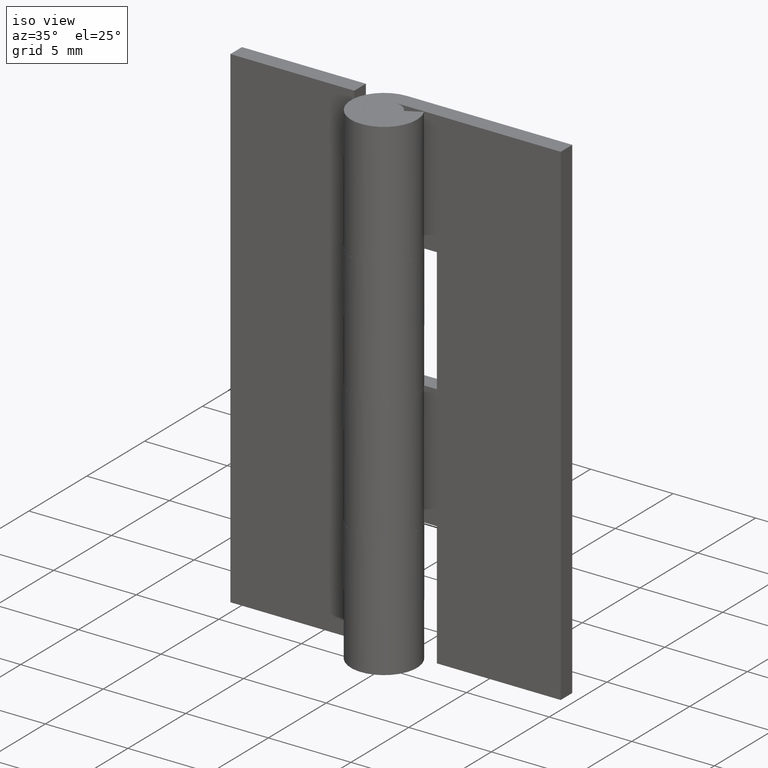
[diagram: clean part render]
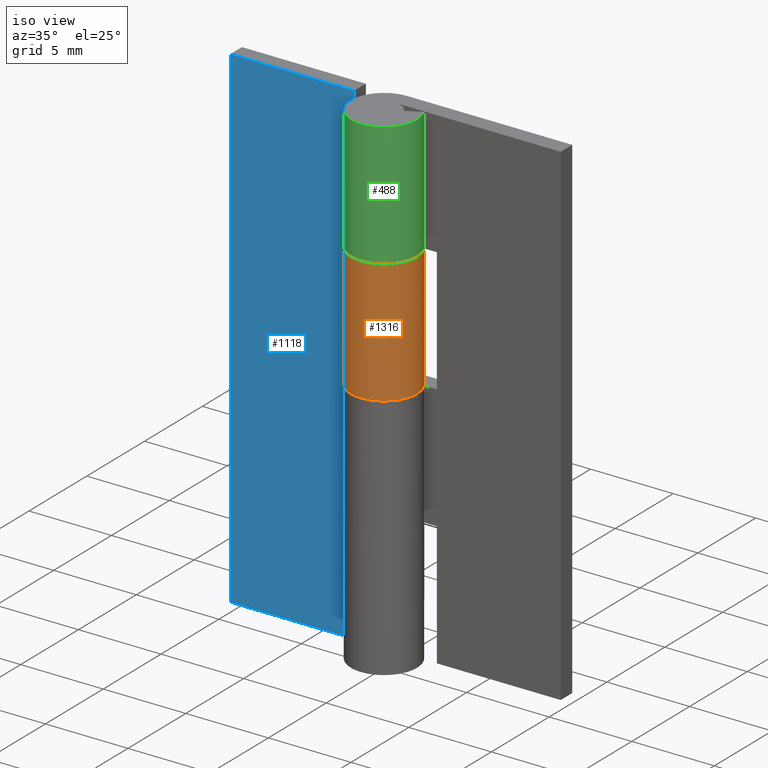
[diagram: same view with three faces highlighted in distinct colors, each labeled with its STEP entity id]
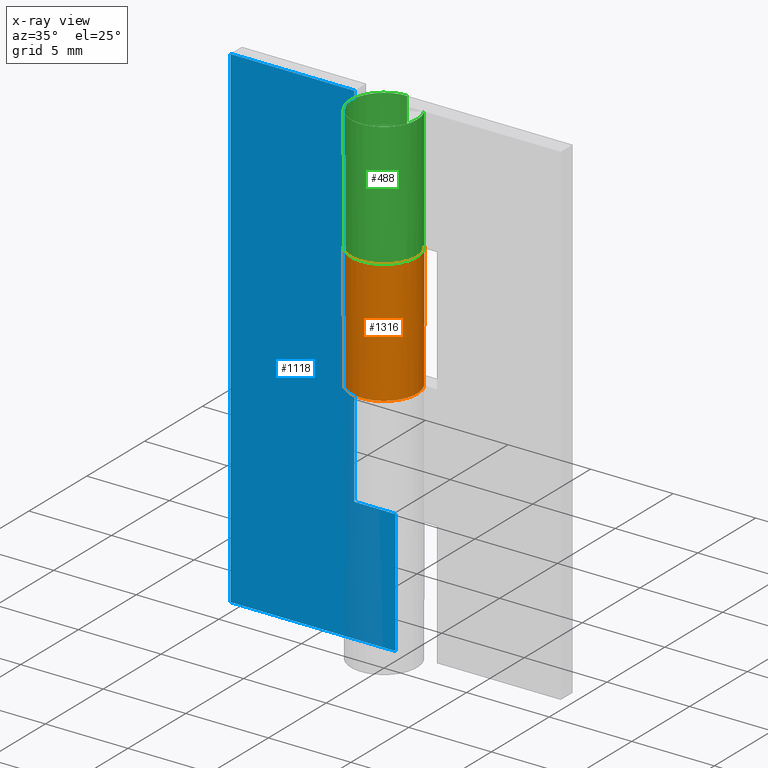
[diagram: x-ray of the same camera — body ghosted, the three highlighted faces saturated]
A machine part, iso view with three faces highlighted in distinct colors.
The next image is the same camera in x-ray (body ghosted, the three faces saturated) — at least one of them is partly hidden behind the body in this view.
Their STEP definitions:

[orange] entity #1316 — the highlighted face is a freeform B-spline surface patch.
#742=CARTESIAN_POINT('',(-1.759971590679805,0.950000000000000,22.500000000000000));
#743=VERTEX_POINT('',#742);
#744=CARTESIAN_POINT('',(0.0,2.0,22.500000000000000));
#745=VERTEX_POINT('',#744);
#746=CARTESIAN_POINT('',(-1.759971590679804,0.950000000000000,22.500000000000000));
#747=CARTESIAN_POINT('',(-2.483544518215584,-0.390492417103144,22.500000000000000));
#748=CARTESIAN_POINT('',(-1.383518044628769,-1.444256840103792,22.500000000000000));
#749=CARTESIAN_POINT('',(-0.283491571041955,-2.498021263104437,22.500000000000000));
#750=CARTESIAN_POINT('',(1.024695076595959,-1.717556403731767,22.500000000000000));
#751=CARTESIAN_POINT('',(2.332881724233873,-0.937091544359097,22.500000000000000));
#752=CARTESIAN_POINT('',(1.928096575312494,0.531454227820451,22.500000000000000));
#753=CARTESIAN_POINT('',(1.523311426391115,2.000000000000000,22.500000000000000));
#754=CARTESIAN_POINT('',(0.0,2.0,22.500000000000000));
#762=(BOUNDED_CURVE()B_SPLINE_CURVE(2,(#746,#747,#748,#749,#750,#751,#752,#753,#754),.UNSPECIFIED.,.F.,.U.)B_SPLINE_CURVE_WITH_KNOTS((3,2,2,2,3),(0.0,0.250000000000000,0.500000000000000,0.750000000000000,1.0),.UNSPECIFIED.)CURVE()GEOMETRIC_REPRESENTATION_ITEM()RATIONAL_B_SPLINE_CURVE((1.0,0.795527219493534,1.0,0.795527219493534,1.0,0.795527219493534,1.0,0.795527219493534,1.0))REPRESENTATION_ITEM(''));
#763=EDGE_CURVE('',#743,#745,#762,.T.);
#812=CARTESIAN_POINT('',(0.0,2.0,15.0));
#813=VERTEX_POINT('',#812);
#814=CARTESIAN_POINT('',(-1.759971590679805,0.950000000000000,15.0));
#815=VERTEX_POINT('',#814);
#816=CARTESIAN_POINT('',(0.0,2.0,15.0));
#817=CARTESIAN_POINT('',(1.523311426391113,2.000000000000000,15.000000000000004));
#818=CARTESIAN_POINT('',(1.928096575312494,0.531454227820452,15.0));
#819=CARTESIAN_POINT('',(2.332881724233873,-0.937091544359094,15.000000000000004));
#820=CARTESIAN_POINT('',(1.024695076595961,-1.717556403731766,15.0));
#821=CARTESIAN_POINT('',(-0.283491571041951,-2.498021263104438,15.000000000000004));
#822=CARTESIAN_POINT('',(-1.383518044628767,-1.444256840103794,15.0));
#823=CARTESIAN_POINT('',(-2.483544518215582,-0.390492417103149,15.000000000000004));
#824=CARTESIAN_POINT('',(-1.759971590679806,0.949999999999997,15.0));
#832=(BOUNDED_CURVE()B_SPLINE_CURVE(2,(#816,#817,#818,#819,#820,#821,#822,#823,#824),.UNSPECIFIED.,.F.,.U.)B_SPLINE_CURVE_WITH_KNOTS((3,2,2,2,3),(0.0,0.250000000000000,0.500000000000000,0.750000000000000,1.0),.UNSPECIFIED.)CURVE()GEOMETRIC_REPRESENTATION_ITEM()RATIONAL_B_SPLINE_CURVE((1.0,0.795527219493534,1.0,0.795527219493534,1.0,0.795527219493534,1.0,0.795527219493534,1.0))REPRESENTATION_ITEM(''));
#833=EDGE_CURVE('',#813,#815,#832,.T.);
#1160=CARTESIAN_POINT('',(-1.759971590679805,0.950000000000000,22.500000000000000));
#1161=CARTESIAN_POINT('',(-1.759971590679805,0.950000000000000,15.0));
#1162=QUASI_UNIFORM_CURVE('',1,(#1160,#1161),.UNSPECIFIED.,.F.,.U.);
#1163=EDGE_CURVE('',#743,#815,#1162,.T.);
#1211=CARTESIAN_POINT('',(0.0,2.0,22.500000000000000));
#1212=CARTESIAN_POINT('',(0.0,2.0,15.0));
#1213=QUASI_UNIFORM_CURVE('',1,(#1211,#1212),.UNSPECIFIED.,.F.,.U.);
#1214=EDGE_CURVE('',#745,#813,#1213,.T.);
#1288=CARTESIAN_POINT('',(-1.734500391479468,0.995745144079332,22.687500000000000));
#1289=CARTESIAN_POINT('',(-1.734500391479468,0.995745144079332,14.807812500000001));
#1290=CARTESIAN_POINT('',(-2.942435842602190,-1.108372084422429,22.687499999999996));
#1291=CARTESIAN_POINT('',(-2.942435842602190,-1.108372084422429,14.807812499999997));
#1292=CARTESIAN_POINT('',(-0.646492224035863,-1.892629864569710,22.687500000000000));
#1293=CARTESIAN_POINT('',(-0.646492224035863,-1.892629864569710,14.807812500000001));
#1294=CARTESIAN_POINT('',(1.649451394530465,-2.676887644716992,22.687499999999996));
#1295=CARTESIAN_POINT('',(1.649451394530465,-2.676887644716992,14.807812499999997));
#1296=CARTESIAN_POINT('',(1.981213455053529,-0.273483537922949,22.687500000000000));
#1297=CARTESIAN_POINT('',(1.981213455053529,-0.273483537922949,14.807812500000001));
#1298=CARTESIAN_POINT('',(2.312975515576595,2.129920568871095,22.687499999999996));
#1299=CARTESIAN_POINT('',(2.312975515576595,2.129920568871095,14.807812499999997));
#1300=CARTESIAN_POINT('',(-0.109574473934650,1.996996102815912,22.687500000000000));
#1301=CARTESIAN_POINT('',(-0.109574473934650,1.996996102815912,14.807812500000001));
#1309=(BOUNDED_SURFACE()B_SPLINE_SURFACE(1,2,((#1288,#1290,#1292,#1294,#1296,#1298,#1300),(#1289,#1291,#1293,#1295,#1297,#1299,#1301)),.UNSPECIFIED.,.F.,.F.,.U.)B_SPLINE_SURFACE_WITH_KNOTS((2,2),(3,2,2,3),(0.0,7.879687500000006),(0.0,3.773044950169767,7.546089900339533,11.319134850509300),.UNSPECIFIED.)GEOMETRIC_REPRESENTATION_ITEM()RATIONAL_B_SPLINE_SURFACE(((1.0,0.636078220277764,1.0,0.636078220277764,1.0,0.636078220277764,1.0),(1.0,0.636078220277764,1.0,0.636078220277764,1.0,0.636078220277764,1.0)))REPRESENTATION_ITEM('')SURFACE());
#1310=ORIENTED_EDGE('',*,*,#763,.F.);
#1311=ORIENTED_EDGE('',*,*,#1163,.T.);
#1312=ORIENTED_EDGE('',*,*,#833,.F.);
#1313=ORIENTED_EDGE('',*,*,#1214,.F.);
#1314=EDGE_LOOP('',(#1310,#1311,#1312,#1313));
#1315=FACE_OUTER_BOUND('',#1314,.T.);
#1316=ADVANCED_FACE('',(#1315),#1309,.T.);

[blue] entity #1118 — the highlighted face is a freeform B-spline surface patch.
#706=CARTESIAN_POINT('',(-2.500000000000000,1.0,30.0));
#707=VERTEX_POINT('',#706);
#708=CARTESIAN_POINT('',(-2.500000000000000,1.0,22.500000000000000));
#709=VERTEX_POINT('',#708);
#710=CARTESIAN_POINT('',(-2.500000000000000,1.0,30.0));
#711=CARTESIAN_POINT('',(-2.500000000000000,1.0,22.500000000000000));
#712=QUASI_UNIFORM_CURVE('',1,(#710,#711),.UNSPECIFIED.,.F.,.U.);
#713=EDGE_CURVE('',#707,#709,#712,.T.);
#771=CARTESIAN_POINT('',(6.123122E-017,1.0,22.500000000000000));
#772=VERTEX_POINT('',#771);
#773=CARTESIAN_POINT('',(-2.500000000000000,1.0,22.500000000000000));
#774=CARTESIAN_POINT('',(6.123122E-017,1.0,22.500000000000000));
#775=QUASI_UNIFORM_CURVE('',1,(#773,#774),.UNSPECIFIED.,.F.,.U.);
#776=EDGE_CURVE('',#709,#772,#775,.T.);
#842=CARTESIAN_POINT('',(6.123032E-017,1.0,15.0));
#843=VERTEX_POINT('',#842);
#863=CARTESIAN_POINT('',(-2.500000000000000,1.0,15.0));
#864=VERTEX_POINT('',#863);
#865=CARTESIAN_POINT('',(6.123032E-017,1.0,15.0));
#866=CARTESIAN_POINT('',(-2.500000000000000,1.0,15.0));
#867=QUASI_UNIFORM_CURVE('',1,(#865,#866),.UNSPECIFIED.,.F.,.U.);
#868=EDGE_CURVE('',#843,#864,#867,.T.);
#890=CARTESIAN_POINT('',(-2.500000000000000,1.0,7.500000000000000));
#891=VERTEX_POINT('',#890);
#892=CARTESIAN_POINT('',(-2.500000000000000,1.0,15.0));
#893=CARTESIAN_POINT('',(-2.500000000000000,1.0,7.500000000000000));
#894=QUASI_UNIFORM_CURVE('',1,(#892,#893),.UNSPECIFIED.,.F.,.U.);
#895=EDGE_CURVE('',#864,#891,#894,.T.);
#947=CARTESIAN_POINT('',(6.123122E-017,1.0,7.500000000000000));
#948=VERTEX_POINT('',#947);
#949=CARTESIAN_POINT('',(-2.500000000000000,1.0,7.500000000000000));
#950=CARTESIAN_POINT('',(6.123122E-017,1.0,7.500000000000000));
#951=QUASI_UNIFORM_CURVE('',1,(#949,#950),.UNSPECIFIED.,.F.,.U.);
#952=EDGE_CURVE('',#891,#948,#951,.T.);
#988=CARTESIAN_POINT('',(-10.0,1.0,0.0));
#989=VERTEX_POINT('',#988);
#1032=CARTESIAN_POINT('',(6.123032E-017,1.0,0.0));
#1033=VERTEX_POINT('',#1032);
#1053=CARTESIAN_POINT('',(6.123032E-017,1.0,0.0));
#1054=CARTESIAN_POINT('',(-10.0,1.0,0.0));
#1055=QUASI_UNIFORM_CURVE('',1,(#1053,#1054),.UNSPECIFIED.,.F.,.U.);
#1056=EDGE_CURVE('',#1033,#989,#1055,.T.);
#1066=CARTESIAN_POINT('',(-10.0,1.0,30.0));
#1067=VERTEX_POINT('',#1066);
#1068=CARTESIAN_POINT('',(-2.500000000000000,1.0,30.0));
#1069=CARTESIAN_POINT('',(-10.0,1.0,30.0));
#1070=QUASI_UNIFORM_CURVE('',1,(#1068,#1069),.UNSPECIFIED.,.F.,.U.);
#1071=EDGE_CURVE('',#707,#1067,#1070,.T.);
#1089=CARTESIAN_POINT('',(-10.499499980618060,1.0,31.498499941854181));
#1090=CARTESIAN_POINT('',(-10.499499980618060,1.0,-1.498500746516883));
#1091=CARTESIAN_POINT('',(0.499500248838960,1.0,31.498499941854181));
#1092=CARTESIAN_POINT('',(0.499500248838960,1.0,-1.498500746516883));
#1093=B_SPLINE_SURFACE_WITH_KNOTS('',1,1,((#1089,#1091),(#1090,#1092)),.UNSPECIFIED.,.F.,.F.,.U.,(2,2),(2,2),(0.0,32.997000688371060),(0.0,10.999000229457019),.UNSPECIFIED.);
#1094=ORIENTED_EDGE('',*,*,#776,.F.);
#1095=ORIENTED_EDGE('',*,*,#713,.F.);
#1096=ORIENTED_EDGE('',*,*,#1071,.T.);
#1097=CARTESIAN_POINT('',(-10.0,1.0,30.0));
#1098=CARTESIAN_POINT('',(-10.0,1.0,0.0));
#1099=QUASI_UNIFORM_CURVE('',1,(#1097,#1098),.UNSPECIFIED.,.F.,.U.);
#1100=EDGE_CURVE('',#1067,#989,#1099,.T.);
#1101=ORIENTED_EDGE('',*,*,#1100,.T.);
#1102=ORIENTED_EDGE('',*,*,#1056,.F.);
#1103=CARTESIAN_POINT('',(6.123122E-017,1.0,7.500000000000000));
#1104=CARTESIAN_POINT('',(6.123032E-017,1.0,0.0));
#1105=QUASI_UNIFORM_CURVE('',1,(#1103,#1104),.UNSPECIFIED.,.F.,.U.);
#1106=EDGE_CURVE('',#948,#1033,#1105,.T.);
#1107=ORIENTED_EDGE('',*,*,#1106,.F.);
#1108=ORIENTED_EDGE('',*,*,#952,.F.);
#1109=ORIENTED_EDGE('',*,*,#895,.F.);
#1110=ORIENTED_EDGE('',*,*,#868,.F.);
#1111=CARTESIAN_POINT('',(6.123122E-017,1.0,22.500000000000000));
#1112=CARTESIAN_POINT('',(6.123032E-017,1.0,15.0));
#1113=QUASI_UNIFORM_CURVE('',1,(#1111,#1112),.UNSPECIFIED.,.F.,.U.);
#1114=EDGE_CURVE('',#772,#843,#1113,.T.);
#1115=ORIENTED_EDGE('',*,*,#1114,.F.);
#1116=EDGE_LOOP('',(#1094,#1095,#1096,#1101,#1102,#1107,#1108,#1109,#1110,#1115));
#1117=FACE_OUTER_BOUND('',#1116,.T.);
#1118=ADVANCED_FACE('',(#1117),#1093,.T.);

[green] entity #488 — the highlighted face is a freeform B-spline surface patch.
#108=CARTESIAN_POINT('',(1.759971590679805,0.950000000000000,22.500000000000000));
#109=VERTEX_POINT('',#108);
#115=CARTESIAN_POINT('',(0.0,2.0,22.500000000000000));
#116=VERTEX_POINT('',#115);
#117=CARTESIAN_POINT('',(1.759971590679804,0.950000000000000,22.500000000000000));
#118=CARTESIAN_POINT('',(2.483544518215583,-0.390492417103145,22.499999999999996));
#119=CARTESIAN_POINT('',(1.383518044628769,-1.444256840103792,22.500000000000000));
#120=CARTESIAN_POINT('',(0.283491571041955,-2.498021263104438,22.499999999999996));
#121=CARTESIAN_POINT('',(-1.024695076595959,-1.717556403731767,22.500000000000000));
#122=CARTESIAN_POINT('',(-2.332881724233874,-0.937091544359097,22.499999999999996));
#123=CARTESIAN_POINT('',(-1.928096575312494,0.531454227820451,22.500000000000000));
#124=CARTESIAN_POINT('',(-1.523311426391114,2.000000000000000,22.499999999999996));
#125=CARTESIAN_POINT('',(0.0,2.0,22.500000000000000));
#133=(BOUNDED_CURVE()B_SPLINE_CURVE(2,(#117,#118,#119,#120,#121,#122,#123,#124,#125),.UNSPECIFIED.,.F.,.U.)B_SPLINE_CURVE_WITH_KNOTS((3,2,2,2,3),(0.0,0.250000000000000,0.500000000000000,0.750000000000000,1.0),.UNSPECIFIED.)CURVE()GEOMETRIC_REPRESENTATION_ITEM()RATIONAL_B_SPLINE_CURVE((1.0,0.795527219493534,1.0,0.795527219493534,1.0,0.795527219493534,1.0,0.795527219493534,1.0))REPRESENTATION_ITEM(''));
#134=EDGE_CURVE('',#109,#116,#133,.T.);
#331=CARTESIAN_POINT('',(-3.673819E-016,2.0,30.0));
#332=VERTEX_POINT('',#331);
#340=CARTESIAN_POINT('',(1.759971590679805,0.950000000000000,30.0));
#341=VERTEX_POINT('',#340);
#342=CARTESIAN_POINT('',(0.0,2.0,30.0));
#343=CARTESIAN_POINT('',(-1.523311426391113,2.000000000000000,30.000000000000007));
#344=CARTESIAN_POINT('',(-1.928096575312494,0.531454227820452,30.0));
#345=CARTESIAN_POINT('',(-2.332881724233873,-0.937091544359094,30.000000000000007));
#346=CARTESIAN_POINT('',(-1.024695076595961,-1.717556403731766,30.0));
#347=CARTESIAN_POINT('',(0.283491571041951,-2.498021263104438,30.000000000000007));
#348=CARTESIAN_POINT('',(1.383518044628767,-1.444256840103794,30.0));
#349=CARTESIAN_POINT('',(2.483544518215582,-0.390492417103149,30.000000000000007));
#350=CARTESIAN_POINT('',(1.759971590679806,0.949999999999997,30.0));
#358=(BOUNDED_CURVE()B_SPLINE_CURVE(2,(#342,#343,#344,#345,#346,#347,#348,#349,#350),.UNSPECIFIED.,.F.,.U.)B_SPLINE_CURVE_WITH_KNOTS((3,2,2,2,3),(0.0,0.250000000000000,0.500000000000000,0.750000000000000,1.0),.UNSPECIFIED.)CURVE()GEOMETRIC_REPRESENTATION_ITEM()RATIONAL_B_SPLINE_CURVE((1.0,0.795527219493534,1.0,0.795527219493534,1.0,0.795527219493534,1.0,0.795527219493534,1.0))REPRESENTATION_ITEM(''));
#359=EDGE_CURVE('',#332,#341,#358,.T.);
#452=CARTESIAN_POINT('',(0.052353896615749,1.999314649951114,30.187500000000000));
#453=CARTESIAN_POINT('',(0.052353896615749,1.999314649951114,22.307812500000001));
#454=CARTESIAN_POINT('',(-2.373008715479058,2.062825005088270,30.187500000000011));
#455=CARTESIAN_POINT('',(-2.373008715479058,2.062825005088270,22.307812500000001));
#456=CARTESIAN_POINT('',(-1.972571203074462,-0.330095211721351,30.187500000000000));
#457=CARTESIAN_POINT('',(-1.972571203074462,-0.330095211721351,22.307812500000001));
#458=CARTESIAN_POINT('',(-1.572133690669869,-2.723015428530974,30.187500000000011));
#459=CARTESIAN_POINT('',(-1.572133690669869,-2.723015428530974,22.307812500000001));
#460=CARTESIAN_POINT('',(0.700414762518930,-1.873344378496796,30.187500000000000));
#461=CARTESIAN_POINT('',(0.700414762518930,-1.873344378496796,22.307812500000001));
#462=CARTESIAN_POINT('',(2.972963215707730,-1.023673328462620,30.187500000000011));
#463=CARTESIAN_POINT('',(2.972963215707730,-1.023673328462620,22.307812500000001));
#464=CARTESIAN_POINT('',(1.705280328708187,1.044997129431892,30.187500000000000));
#465=CARTESIAN_POINT('',(1.705280328708187,1.044997129431892,22.307812500000001));
#473=(BOUNDED_SURFACE()B_SPLINE_SURFACE(1,2,((#452,#454,#456,#458,#460,#462,#464),(#453,#455,#457,#459,#461,#463,#465)),.UNSPECIFIED.,.F.,.F.,.U.)B_SPLINE_SURFACE_WITH_KNOTS((2,2),(3,2,2,3),(0.0,7.879687500000009),(0.0,3.773044950169767,7.546089900339533,11.319134850509300),.UNSPECIFIED.)GEOMETRIC_REPRESENTATION_ITEM()RATIONAL_B_SPLINE_SURFACE(((1.0,0.636078220277764,1.0,0.636078220277764,1.0,0.636078220277764,1.0),(1.0,0.636078220277764,1.0,0.636078220277764,1.0,0.636078220277764,1.0)))REPRESENTATION_ITEM('')SURFACE());
#474=ORIENTED_EDGE('',*,*,#134,.F.);
#475=CARTESIAN_POINT('',(1.759971590679805,0.950000000000000,30.0));
#476=CARTESIAN_POINT('',(1.759971590679805,0.950000000000000,22.500000000000000));
#477=QUASI_UNIFORM_CURVE('',1,(#475,#476),.UNSPECIFIED.,.F.,.U.);
#478=EDGE_CURVE('',#341,#109,#477,.T.);
#479=ORIENTED_EDGE('',*,*,#478,.F.);
#480=ORIENTED_EDGE('',*,*,#359,.F.);
#481=CARTESIAN_POINT('',(-3.673819E-016,2.0,30.0));
#482=CARTESIAN_POINT('',(0.0,2.0,22.500000000000000));
#483=QUASI_UNIFORM_CURVE('',1,(#481,#482),.UNSPECIFIED.,.F.,.U.);
#484=EDGE_CURVE('',#332,#116,#483,.T.);
#485=ORIENTED_EDGE('',*,*,#484,.T.);
#486=EDGE_LOOP('',(#474,#479,#480,#485));
#487=FACE_OUTER_BOUND('',#486,.T.);
#488=ADVANCED_FACE('',(#487),#473,.T.);